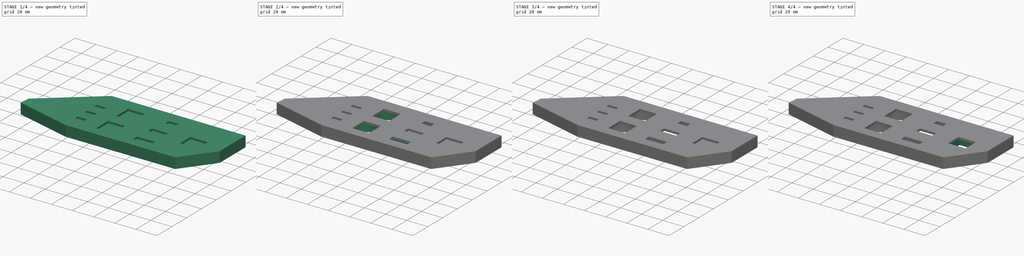
[diagram: build sequence overview — one tinted view per stage of 4, left to right]
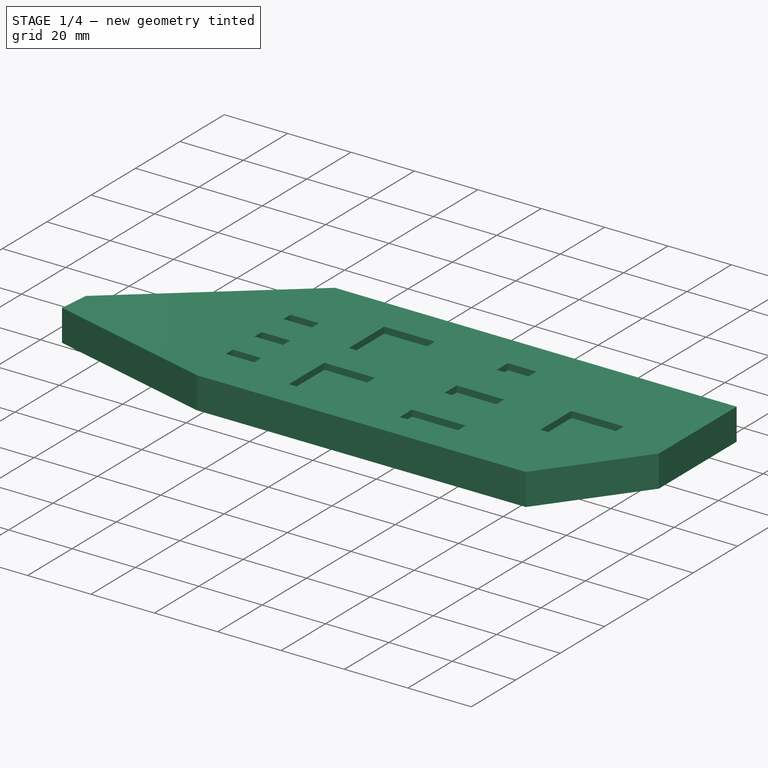
[diagram: stage 1 of 4 — iso view after this stage's code; geometry added in this stage tinted green]
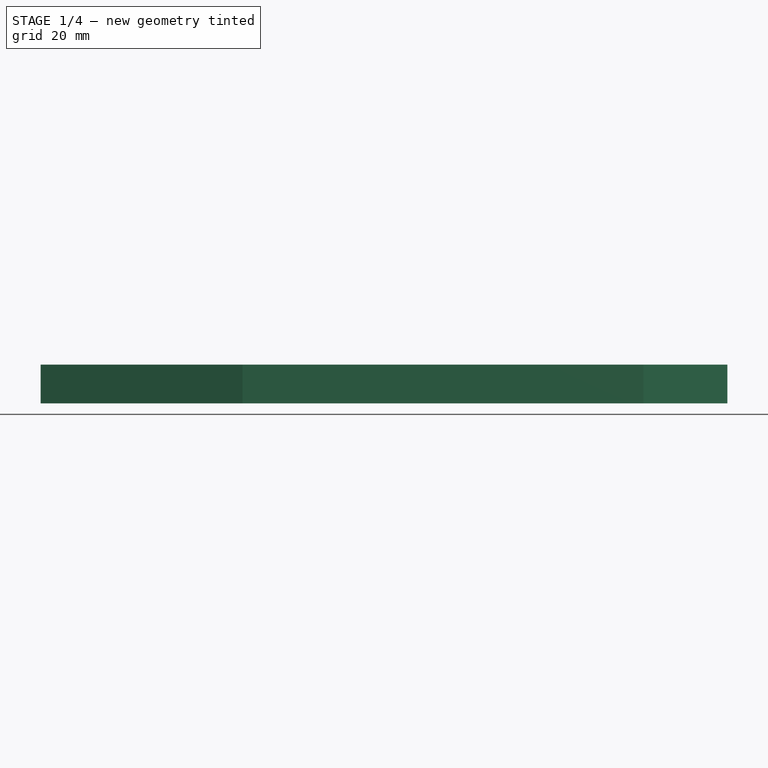
[diagram: stage 1 of 4 — front view after this stage's code; geometry added in this stage tinted green]
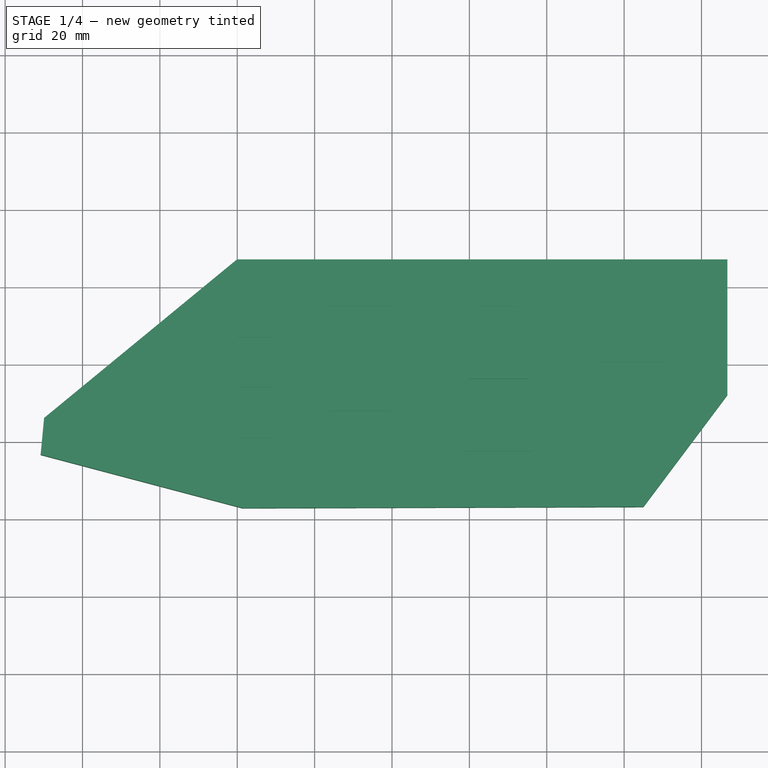
[diagram: stage 1 of 4 — top view after this stage's code; geometry added in this stage tinted green]
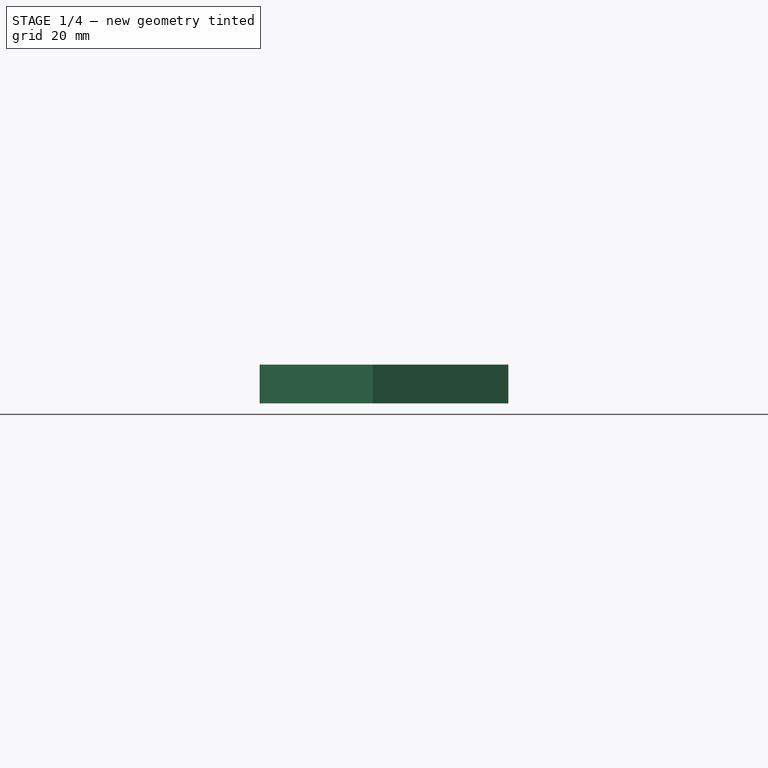
[diagram: stage 1 of 4 — right view after this stage's code; geometry added in this stage tinted green]
FCSTD DOCUMENT  (FreeCAD 2021.717R24301 +3842 (Git))
Label: IO Shield 1-IO ShieldPlate-rev6
License: All rights reserved
LicenseURL: http://en.wikipedia.org/wiki/All_rights_reserved
objects: Sketcher::SketchObject×10, PartDesign::Pocket×9, PartDesign::Pad×1, PartDesign::Body×1, App::Part×1
note: 41 computed .brp shape members not serialized (recipe doc carries the construction recipe); baked Part::Feature solids carry a one-line shape summary decoded from their .brp

FEATURE [Sketcher::SketchObject] Sketch
  FullyConstrained = true
  MapMode = 2
  sketch-geometry (7):
    g0: LineSegment StartX=126.692 StartY=7.13634 StartZ=0 EndX=-0.047754 EndY=7.13634 EndZ=0
    g1: LineSegment StartX=-0.047754 StartY=7.13634 StartZ=0 EndX=-49.9211 EndY=-33.8593 EndZ=0
    g2: LineSegment StartX=-49.9211 StartY=-33.8593 StartZ=0 EndX=-50.8192 EndY=-43.3418 EndZ=0
    g3: LineSegment StartX=-50.8192 StartY=-43.3418 StartZ=0 EndX=1.3606 EndY=-57.1466 EndZ=0
    g4: LineSegment StartX=1.3606 StartY=-57.1466 StartZ=0 EndX=104.98 EndY=-56.822 EndZ=0
    g5: LineSegment StartX=104.98 StartY=-56.822 StartZ=0 EndX=126.692 EndY=-27.8937 EndZ=0
    g6: LineSegment StartX=126.692 StartY=-27.8937 StartZ=0 EndX=126.692 EndY=7.13634 EndZ=0
  constraints (21):
    c: Horizontal(g0)
    c: Coincident(g2,g1)
    c: Distance(g2) = 9.525
    c: Coincident(g3,g2)
    c: Distance(g3) = 53.975
    c: Coincident(g4,g3)
    c: Coincident(g5,g4)
    c: Coincident(g6,g5)
    c: Coincident(g6,g0)
    c: Angle(g0,g6) = 1.5708
    c: Distance(g4) = 103.62
    c: Distance(g5) = 36.17
    c: Coincident(g0,g1)
    c: DistanceX(g0) = -0.047754
    c: DistanceY(g0) = 7.13634
    c: DistanceX(g0,g0) = 126.74
    c: DistanceY(g6,g6) = 35.03
    c: Distance(g1) = 64.56
    c: Angle(g2,g1) = 2.35323
    c: Angle(g1,g0) = 2.45358
    c: Angle(g6,g5) = 2.49774
FEATURE [PartDesign::Pad] Pad  label="Plate"
  ClaimChildren = false
  Direction = (1,1,1)
  Fit = 0
  FitJoin = 0
  InnerFit = 0
  InnerFitJoin = 0
  InnerTaperAngle = 0
  InnerTaperAngleRev = 0
  Length = 10
  Length2 = 100
  Linearize = true
  NewSolid = false
  Profile = -> Sketch
  Suppress = false
  Type = 0
  _ProfileBasedVersion = 1
FEATURE [Sketcher::SketchObject] Sketch001
  FullyConstrained = true
  MapMode = 5
  Placement = pos=(0,0,10) rot=(0,0,1;0rad)
  Support = -> [Pad]
  sketch-geometry (36):
    g0: LineSegment StartX=0 StartY=-12.95 StartZ=0 EndX=9 EndY=-12.95 EndZ=0
    g1: LineSegment StartX=9 StartY=-12.95 StartZ=0 EndX=9 EndY=-16.15 EndZ=0
    g2: LineSegment StartX=9 StartY=-16.15 StartZ=0 EndX=0 EndY=-16.15 EndZ=0
    g3: LineSegment StartX=0 StartY=-16.15 StartZ=0 EndX=0 EndY=-12.95 EndZ=0
    g4: LineSegment StartX=0 StartY=-25.95 StartZ=0 EndX=9 EndY=-25.95 EndZ=0
    g5: LineSegment StartX=9 StartY=-25.95 StartZ=0 EndX=9 EndY=-29.15 EndZ=0
    g6: LineSegment StartX=9 StartY=-29.15 StartZ=0 EndX=0 EndY=-29.15 EndZ=0
    g7: LineSegment StartX=0 StartY=-29.15 StartZ=0 EndX=0 EndY=-25.95 EndZ=0
    g8: LineSegment StartX=0 StartY=-38.95 StartZ=0 EndX=9 EndY=-38.95 EndZ=0
    g9: LineSegment StartX=9 StartY=-38.95 StartZ=0 EndX=9 EndY=-42.15 EndZ=0
    g10: LineSegment StartX=9 StartY=-42.15 StartZ=0 EndX=0 EndY=-42.15 EndZ=0
    g11: LineSegment StartX=0 StartY=-42.15 StartZ=0 EndX=0 EndY=-38.95 EndZ=0
    g12: LineSegment StartX=60 StartY=-23.75 StartZ=0 EndX=75 EndY=-23.75 EndZ=0
    g13: LineSegment StartX=60 StartY=-23.75 StartZ=0 EndX=60 EndY=-29.25 EndZ=0
    g14: LineSegment StartX=75 StartY=-23.75 StartZ=0 EndX=75 EndY=-29.25 EndZ=0
    g15: LineSegment StartX=60 StartY=-29.25 StartZ=0 EndX=75 EndY=-29.25 EndZ=0
    g16: LineSegment StartX=63 StartY=-5 StartZ=0 EndX=72 EndY=-5 EndZ=0
    g17: LineSegment StartX=72 StartY=-5 StartZ=0 EndX=72 EndY=-10 EndZ=0
    g18: LineSegment StartX=72 StartY=-10 StartZ=0 EndX=63 EndY=-10 EndZ=0
    g19: LineSegment StartX=63 StartY=-10 StartZ=0 EndX=63 EndY=-5 EndZ=0
    g20: LineSegment StartX=93.25 StartY=-19.5 StartZ=0 EndX=109.75 EndY=-19.5 EndZ=0
    g21: LineSegment StartX=109.75 StartY=-19.5 StartZ=0 EndX=109.75 EndY=-33.5 EndZ=0
    g22: LineSegment StartX=109.75 StartY=-33.5 StartZ=0 EndX=93.25 EndY=-33.5 EndZ=0
    g23: LineSegment StartX=93.25 StartY=-33.5 StartZ=0 EndX=93.25 EndY=-19.5 EndZ=0
    g24: LineSegment StartX=24 StartY=-5 StartZ=0 EndX=40 EndY=-5 EndZ=0
    g25: LineSegment StartX=40 StartY=-5 StartZ=0 EndX=40 EndY=-21 EndZ=0
    g26: LineSegment StartX=40 StartY=-21 StartZ=0 EndX=24 EndY=-21 EndZ=0
    g27: LineSegment StartX=24 StartY=-21 StartZ=0 EndX=24 EndY=-5 EndZ=0
    g28: LineSegment StartX=24 StartY=-32 StartZ=0 EndX=40 EndY=-32 EndZ=0
    g29: LineSegment StartX=40 StartY=-32 StartZ=0 EndX=40 EndY=-48 EndZ=0
    g30: LineSegment StartX=40 StartY=-48 StartZ=0 EndX=24 EndY=-48 EndZ=0
    g31: LineSegment StartX=24 StartY=-48 StartZ=0 EndX=24 EndY=-32 EndZ=0
    g32: LineSegment StartX=59 StartY=-42.5 StartZ=0 EndX=76 EndY=-42.5 EndZ=0
    g33: LineSegment StartX=76 StartY=-42.5 StartZ=0 EndX=76 EndY=-48 EndZ=0
    g34: LineSegment StartX=76 StartY=-48 StartZ=0 EndX=59 EndY=-48 EndZ=0
    g35: LineSegment StartX=59 StartY=-48 StartZ=0 EndX=59 EndY=-42.5 EndZ=0
  constraints (108):
    c: Coincident(g0,g1)
    c: Coincident(g1,g2)
    c: Coincident(g2,g3)
    c: Coincident(g3,g0)
    c: Horizontal(g0)
    c: Horizontal(g2)
    c: Vertical(g1)
    c: Vertical(g3)
    c: DistanceX(g0,g0) = 9
    c: DistanceY(g3,g3) = 3.2
    c: DistanceX(g0) = 0
    c: DistanceY(g0) = -12.95
    c: Coincident(g4,g5)
    c: Coincident(g5,g6)
    c: Coincident(g6,g7)
    c: Coincident(g7,g4)
    c: Horizontal(g4)
    c: Horizontal(g6)
    c: Vertical(g5)
    c: Vertical(g7)
    c: Equal(g4,g2)
    c: Equal(g5,g1)
    c: DistanceX(g4) = 0
    c: DistanceY(g4) = -25.95
    c: Coincident(g8,g9)
    c: Coincident(g9,g10)
    c: Coincident(g10,g11)
    c: Coincident(g11,g8)
    c: Horizontal(g8)
    c: Horizontal(g10)
    c: Vertical(g9)
    c: Vertical(g11)
    c: Equal(g8,g6)
    c: Equal(g9,g5)
    c: DistanceX(g8) = 0
    c: DistanceY(g8) = -38.95
    c: Horizontal(g12)
    c: DistanceX(g12,g12) = 15
    c: Coincident(g13,g12)
    c: Vertical(g13)
    c: DistanceY(g13,g13) = 5.5
    c: Coincident(g14,g12)
    c: Equal(g14,g13)
    c: Vertical(g14)
    c: Coincident(g15,g13)
    c: Coincident(g15,g14)
    c: DistanceX(g12) = 60
    c: DistanceY(g12) = -23.75
    c: Coincident(g16,g17)
    c: Coincident(g17,g18)
    c: Coincident(g18,g19)
    c: Coincident(g19,g16)
    c: Horizontal(g16)
    c: Horizontal(g18)
    c: Vertical(g17)
    c: Vertical(g19)
    c: DistanceX(g16,g16) = 9
    c: DistanceY(g17,g17) = 5
    c: DistanceX(g16) = 63
    c: DistanceY(g16) = -5
    c: Coincident(g20,g21)
    c: Coincident(g21,g22)
    c: Coincident(g22,g23)
    c: Coincident(g23,g20)
    c: Horizontal(g20)
    c: Horizontal(g22)
    c: Vertical(g21)
    c: Vertical(g23)
    c: DistanceX(g20,g20) = 16.5
    c: DistanceY(g23,g23) = 14
    c: DistanceX(g20) = 93.25
    c: DistanceY(g20) = -19.5
    c: Coincident(g24,g25)
    c: Coincident(g25,g26)
    c: Coincident(g26,g27)
    c: Coincident(g27,g24)
    c: Horizontal(g24)
    c: Horizontal(g26)
    c: Vertical(g25)
    c: Vertical(g27)
    c: DistanceX(g26,g26) = 16
    c: DistanceY(g25,g25) = 16
    c: Coincident(g28,g29)
    c: Coincident(g29,g30)
    c: Coincident(g30,g31)
    c: Coincident(g31,g28)
    c: Horizontal(g28)
    c: Horizontal(g30)
    c: Vertical(g29)
    c: Vertical(g31)
    c: DistanceX(g28,g28) = 16
    c: DistanceY(g29,g29) = 16
    c: DistanceX(g28) = 24
    c: DistanceY(g28) = -32
    c: DistanceX(g24) = 24
    c: DistanceY(g24) = -5
    c: Coincident(g32,g33)
    c: Coincident(g33,g34)
    c: Coincident(g34,g35)
    c: Coincident(g35,g32)
    c: Horizontal(g32)
    c: Horizontal(g34)
    c: Vertical(g33)
    c: Vertical(g35)
    c: DistanceX(g32,g32) = 17
    c: DistanceY(g35,g35) = 5.5
    c: DistanceX(g32) = 59
    c: DistanceY(g32) = -42.5
FEATURE [PartDesign::Pocket] Pocket  label="Port Holes"
  BaseFeature = -> Pad
  ClaimChildren = false
  Fit = 0
  FitJoin = 0
  InnerFit = 0
  InnerFitJoin = 0
  InnerTaperAngle = 0
  InnerTaperAngleRev = 0
  Length = 2
  Length2 = 100
  Linearize = true
  NewSolid = false
  Profile = -> Sketch001
  Suppress = false
  Type = 0
  _ProfileBasedVersion = 1
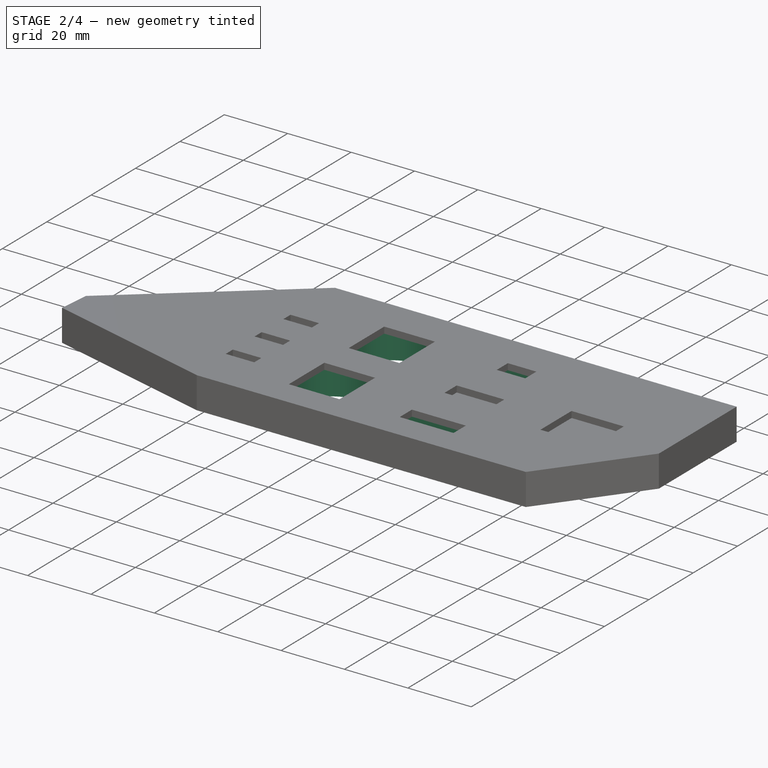
[diagram: stage 2 of 4 — iso view after this stage's code; geometry added in this stage tinted green]
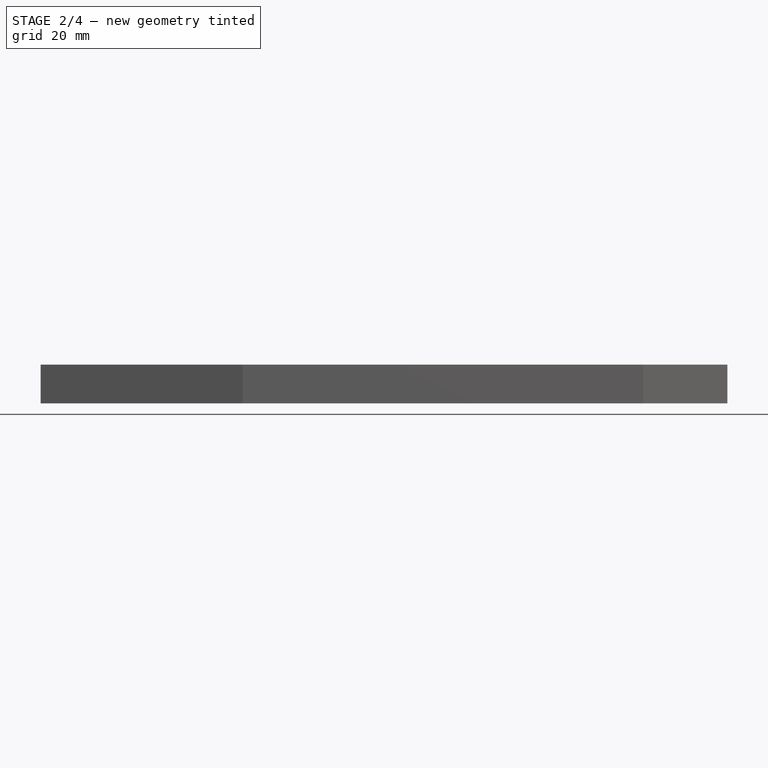
[diagram: stage 2 of 4 — front view after this stage's code; geometry added in this stage tinted green]
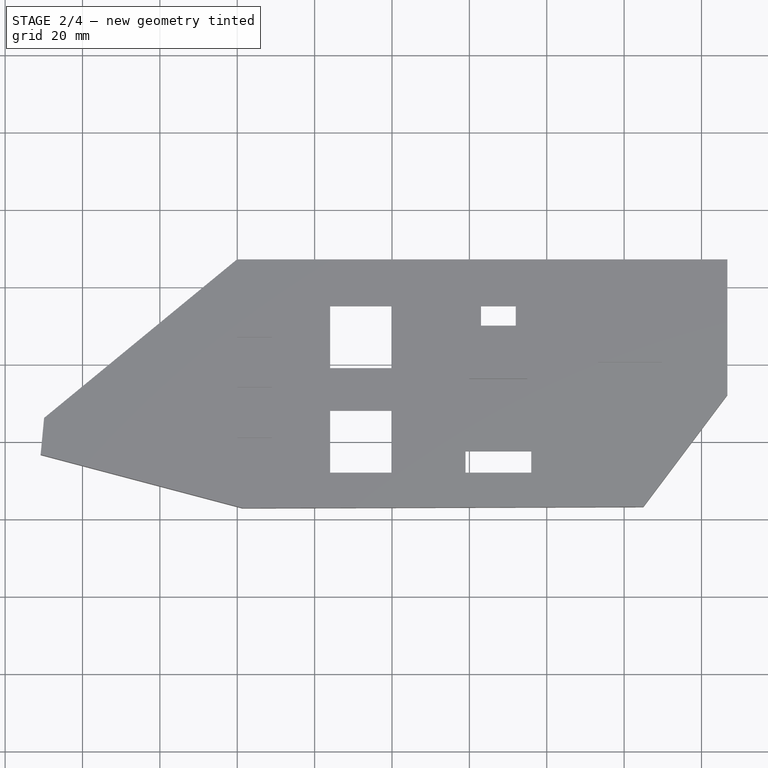
[diagram: stage 2 of 4 — top view after this stage's code; geometry added in this stage tinted green]
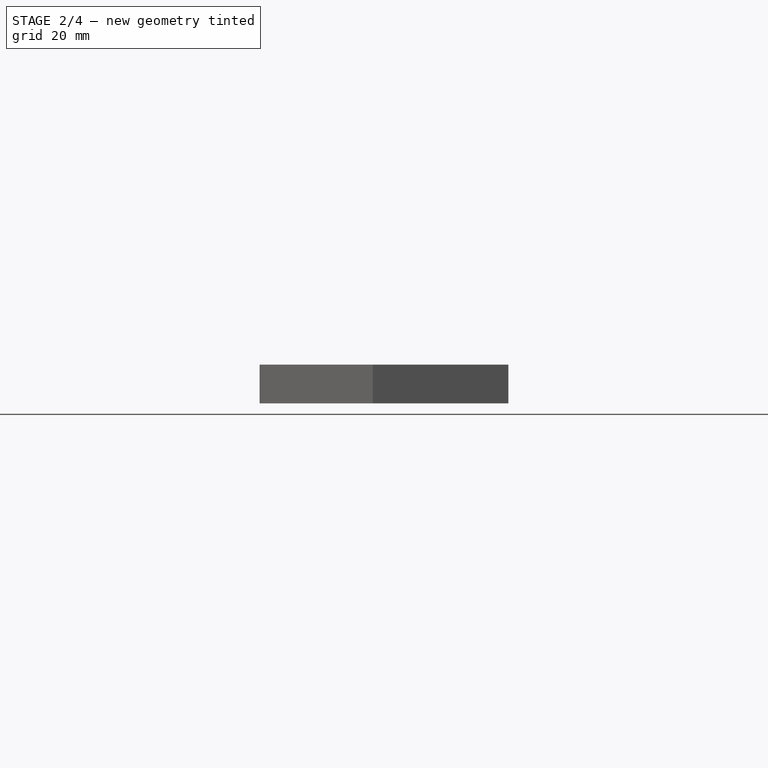
[diagram: stage 2 of 4 — right view after this stage's code; geometry added in this stage tinted green]
FEATURE [Sketcher::SketchObject] Sketch002  label="USB A"
  FullyConstrained = true
  MapMode = 5
  Placement = pos=(0,0,0) rot=(1,0,0;3.14159rad)
  Support = -> [Pocket]
  sketch-geometry (2):
    g0: Circle CenterX=32 CenterY=39.9823 CenterZ=0 NormalX=0 NormalY=0 NormalZ=1 AngleXU=0 Radius=12
    g1: Circle CenterX=32 CenterY=12.9892 CenterZ=0 NormalX=0 NormalY=0 NormalZ=1 AngleXU=0 Radius=12
  constraints (6):
    c: Diameter(g0) = 24
    c: DistanceX(g0) = 32
    c: DistanceY(g0) = 39.9823
    c: Diameter(g1) = 24
    c: DistanceX(g1) = 32
    c: DistanceY(g1) = 12.9892
FEATURE [PartDesign::Pocket] Pocket001  label="USB A Back Hole"
  BaseFeature = -> Pocket
  ClaimChildren = false
  Fit = 0
  FitJoin = 0
  InnerFit = 0
  InnerFitJoin = 0
  InnerTaperAngle = 0
  InnerTaperAngleRev = 0
  Length = 0
  Length2 = 100
  Linearize = true
  NewSolid = false
  Profile = -> Sketch002
  Suppress = false
  Type = 3
  UpToFace = -> Pocket [Face47]
  _ProfileBasedVersion = 1
FEATURE [Sketcher::SketchObject] Sketch003  label="MiniDP Back Hole"
  FullyConstrained = true
  MapMode = 5
  Placement = pos=(0,0,0) rot=(1,0,0;3.14159rad)
  Support = -> [Pocket001]
  sketch-geometry (4):
    g0: LineSegment StartX=46.9815 StartY=17 StartZ=0 EndX=87.9815 EndY=17 EndZ=0
    g1: LineSegment StartX=87.9815 StartY=17 StartZ=0 EndX=87.9815 EndY=-2 EndZ=0
    g2: LineSegment StartX=87.9815 StartY=-2 StartZ=0 EndX=46.9815 EndY=-2 EndZ=0
    g3: LineSegment StartX=46.9815 StartY=-2 StartZ=0 EndX=46.9815 EndY=17 EndZ=0
  constraints (12):
    c: Coincident(g0,g1)
    c: Coincident(g1,g2)
    c: Coincident(g2,g3)
    c: Coincident(g3,g0)
    c: Horizontal(g0)
    c: Horizontal(g2)
    c: Vertical(g1)
    c: Vertical(g3)
    c: DistanceY(g1,g1) = 19
    c: DistanceX(g0,g0) = 41
    c: DistanceX(g0) = 46.9815
    c: DistanceY(g0) = 17
FEATURE [PartDesign::Pocket] Pocket002  label="MiniDP Back Hole Pocket"
  BaseFeature = -> Pocket001
  ClaimChildren = false
  Fit = 0
  FitJoin = 0
  InnerFit = 0
  InnerFitJoin = 0
  InnerTaperAngle = 0
  InnerTaperAngleRev = 0
  Length = 0
  Length2 = 100
  Linearize = true
  NewSolid = false
  Profile = -> Sketch003
  Suppress = false
  Type = 3
  UpToFace = -> Pocket001 [Face56]
  _ProfileBasedVersion = 1
FEATURE [Sketcher::SketchObject] Sketch004  label="DisplayPort Back Hole"
  FullyConstrained = true
  MapMode = 5
  Placement = pos=(0,0,0) rot=(1,0,0;3.14159rad)
  Support = -> [Pocket002]
  sketch-geometry (4):
    g0: LineSegment StartX=50.0139 StartY=51.5 StartZ=0 EndX=85.0139 EndY=51.5 EndZ=0
    g1: LineSegment StartX=85.0139 StartY=51.5 StartZ=0 EndX=85.0139 EndY=39 EndZ=0
    g2: LineSegment StartX=85.0139 StartY=39 StartZ=0 EndX=50.0139 EndY=39 EndZ=0
    g3: LineSegment StartX=50.0139 StartY=39 StartZ=0 EndX=50.0139 EndY=51.5 EndZ=0
  constraints (12):
    c: Coincident(g0,g1)
    c: Coincident(g1,g2)
    c: Coincident(g2,g3)
    c: Coincident(g3,g0)
    c: Horizontal(g0)
    c: Horizontal(g2)
    c: Vertical(g1)
    c: Vertical(g3)
    c: DistanceY(g1,g1) = 12.5
    c: DistanceX(g0,g0) = 35
    c: DistanceX(g0) = 50.0139
    c: DistanceY(g0) = 51.5
FEATURE [PartDesign::Pocket] Pocket003  label="DisplayPort Back Hole Pocket"
  BaseFeature = -> Pocket002
  ClaimChildren = false
  Fit = 0
  FitJoin = 0
  InnerFit = 0
  InnerFitJoin = 0
  InnerTaperAngle = 0
  InnerTaperAngleRev = 0
  Length = 0
  Length2 = 100
  Linearize = true
  NewSolid = false
  Profile = -> Sketch004
  Suppress = false
  Type = 3
  UpToFace = -> Pocket002 [Face57]
  _ProfileBasedVersion = 1
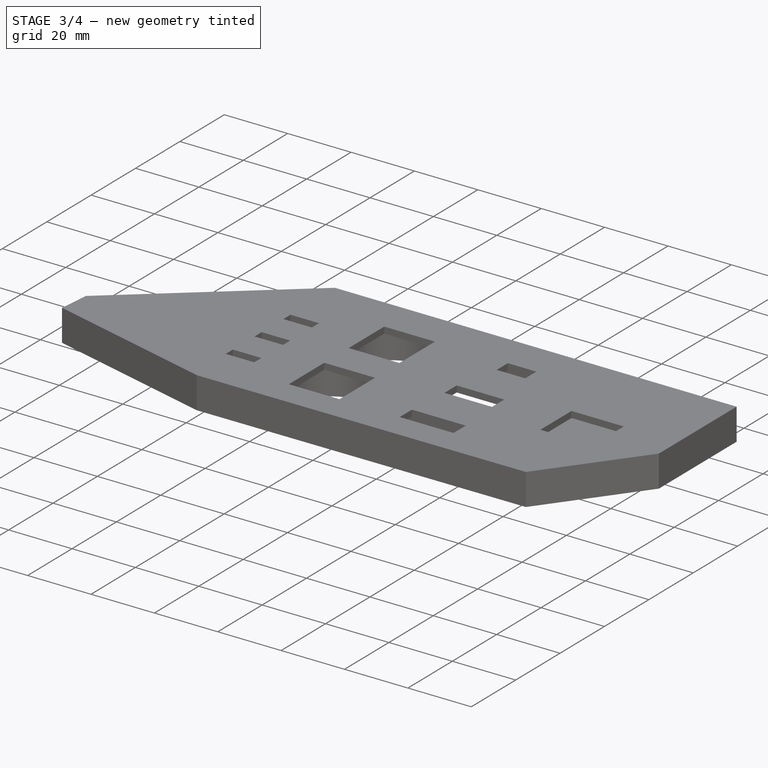
[diagram: stage 3 of 4 — iso view after this stage's code; geometry added in this stage tinted green]
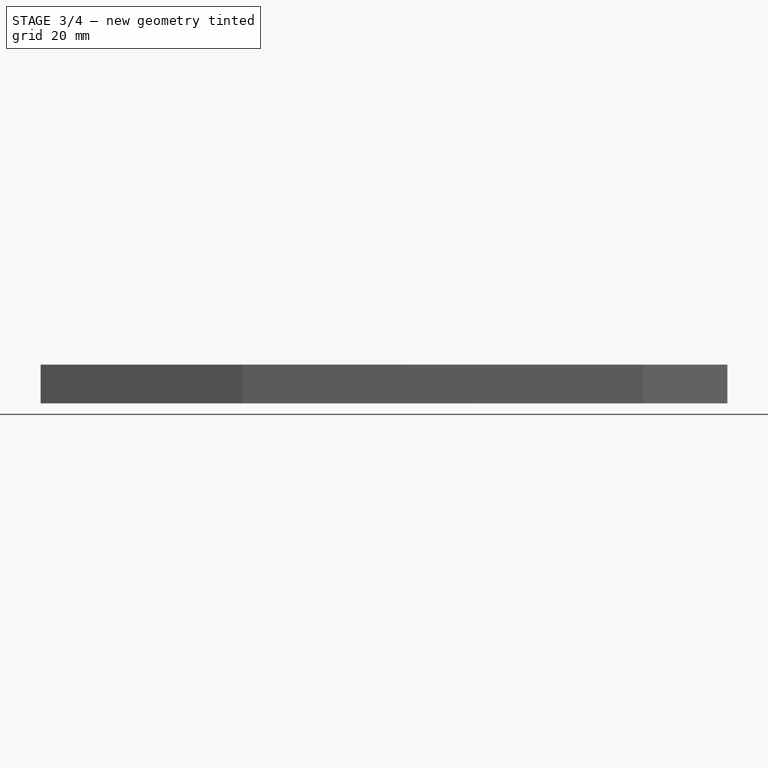
[diagram: stage 3 of 4 — front view after this stage's code; geometry added in this stage tinted green]
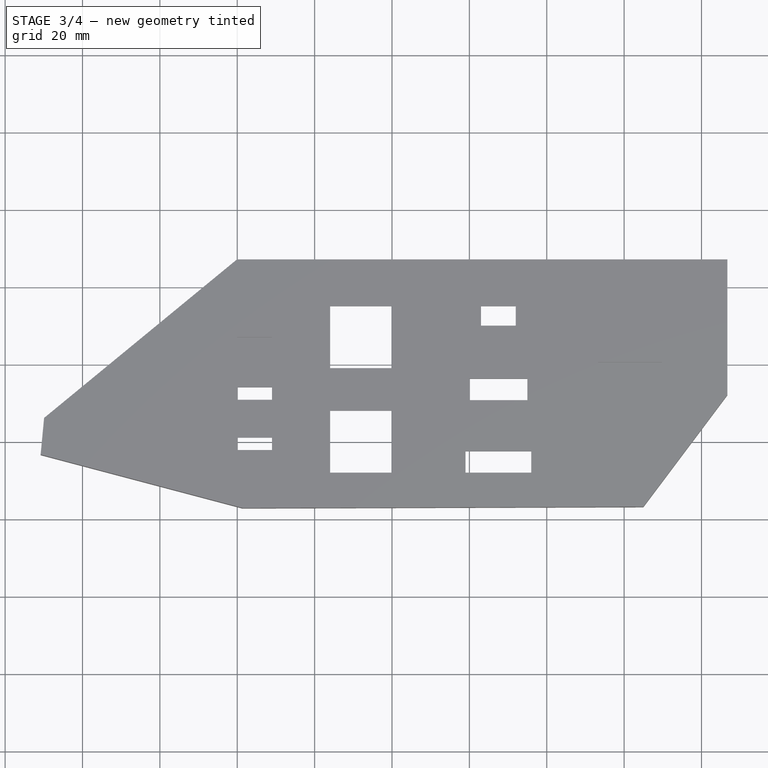
[diagram: stage 3 of 4 — top view after this stage's code; geometry added in this stage tinted green]
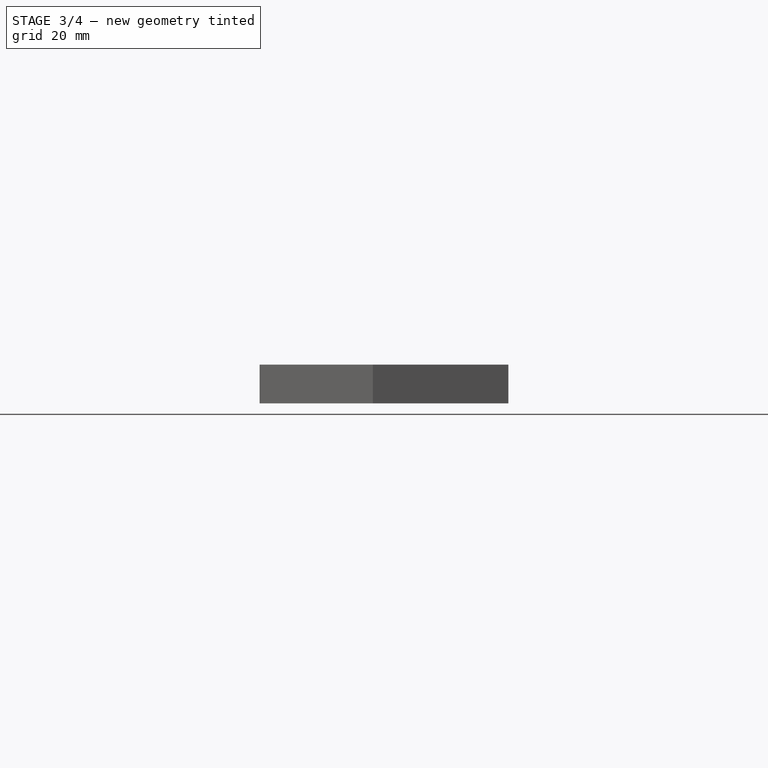
[diagram: stage 3 of 4 — right view after this stage's code; geometry added in this stage tinted green]
FEATURE [Sketcher::SketchObject] Sketch005  label="HDMI Back Hole"
  FullyConstrained = false
  MapMode = 5
  Placement = pos=(0,0,0) rot=(1,0,0;3.14159rad)
  Support = -> [Pocket003]
  sketch-geometry (4):
    g0: LineSegment StartX=47.1948 StartY=36.9978 StartZ=0 EndX=88.1948 EndY=36.9978 EndZ=0
    g1: LineSegment StartX=88.1948 StartY=36.9978 StartZ=0 EndX=88.1948 EndY=15.9978 EndZ=0
    g2: LineSegment StartX=88.1948 StartY=15.9978 StartZ=0 EndX=47.1948 EndY=15.9978 EndZ=0
    g3: LineSegment StartX=47.1948 StartY=15.9978 StartZ=0 EndX=47.1948 EndY=36.9978 EndZ=0
  constraints (11):
    c: Coincident(g0,g1)
    c: Coincident(g1,g2)
    c: Coincident(g2,g3)
    c: Coincident(g3,g0)
    c: Horizontal(g0)
    c: Horizontal(g2)
    c: Vertical(g1)
    c: Vertical(g3)
    c: DistanceY(g1,g1) = 21
    c: DistanceX(g0,g0) = 41
    c: DistanceX(g0) = 47.1948
FEATURE [PartDesign::Pocket] Pocket004  label="HDMI Back Hole Pocket"
  BaseFeature = -> Pocket003
  ClaimChildren = false
  Fit = 0
  FitJoin = 0
  InnerFit = 0
  InnerFitJoin = 0
  InnerTaperAngle = 0
  InnerTaperAngleRev = 0
  Length = 0
  Length2 = 100
  Linearize = true
  NewSolid = false
  Profile = -> Sketch005
  Suppress = false
  Type = 3
  UpToFace = -> Pocket003 [Face62]
  _ProfileBasedVersion = 1
FEATURE [Sketcher::SketchObject] Sketch006  label="USB-C 1 Hole"
  FullyConstrained = true
  MapMode = 5
  Placement = pos=(0,0,0) rot=(1,0,0;3.14159rad)
  Support = -> [Pocket004]
  sketch-geometry (4):
    g0: LineSegment StartX=-2.49085 StartY=46.5402 StartZ=0 EndX=11.5091 EndY=46.5402 EndZ=0
    g1: LineSegment StartX=11.5091 StartY=46.5402 StartZ=0 EndX=11.5091 EndY=34.5402 EndZ=0
    g2: LineSegment StartX=11.5091 StartY=34.5402 StartZ=0 EndX=-2.49085 EndY=34.5402 EndZ=0
    g3: LineSegment StartX=-2.49085 StartY=34.5402 StartZ=0 EndX=-2.49085 EndY=46.5402 EndZ=0
  constraints (12):
    c: Coincident(g0,g1)
    c: Coincident(g1,g2)
    c: Coincident(g2,g3)
    c: Coincident(g3,g0)
    c: Horizontal(g0)
    c: Horizontal(g2)
    c: Vertical(g1)
    c: Vertical(g3)
    c: DistanceX(g0,g0) = 14
    c: DistanceY(g1,g1) = 12
    c: DistanceX(g0) = -2.49085
    c: DistanceY(g0) = 46.5402
FEATURE [PartDesign::Pocket] Pocket005  label="USB-C 1 Hole Pocket"
  BaseFeature = -> Pocket004
  ClaimChildren = false
  Fit = 0
  FitJoin = 0
  InnerFit = 0
  InnerFitJoin = 0
  InnerTaperAngle = 0
  InnerTaperAngleRev = 0
  Length = 0
  Length2 = 100
  Linearize = true
  NewSolid = false
  Profile = -> Sketch006
  Suppress = false
  Type = 3
  UpToFace = -> Pocket004 [Face65]
  _ProfileBasedVersion = 1
FEATURE [Sketcher::SketchObject] Sketch007  label="USB-C 2 Hole"
  FullyConstrained = true
  MapMode = 5
  Placement = pos=(0,0,0) rot=(1,0,0;3.14159rad)
  Support = -> [Pocket005]
  sketch-geometry (4):
    g0: LineSegment StartX=-2 StartY=31.5458 StartZ=0 EndX=11 EndY=31.5458 EndZ=0
    g1: LineSegment StartX=11 StartY=31.5458 StartZ=0 EndX=11 EndY=23.5458 EndZ=0
    g2: LineSegment StartX=11 StartY=23.5458 StartZ=0 EndX=-2 EndY=23.5458 EndZ=0
    g3: LineSegment StartX=-2 StartY=23.5458 StartZ=0 EndX=-2 EndY=31.5458 EndZ=0
  constraints (12):
    c: Coincident(g0,g1)
    c: Coincident(g1,g2)
    c: Coincident(g2,g3)
    c: Coincident(g3,g0)
    c: Horizontal(g0)
    c: Horizontal(g2)
    c: Vertical(g1)
    c: Vertical(g3)
    c: DistanceX(g0,g0) = 13
    c: DistanceY(g1,g1) = 8
    c: DistanceX(g0) = -2
    c: DistanceY(g0) = 31.5458
FEATURE [PartDesign::Pocket] Pocket006  label="USB-C 2 Hole Pocket"
  BaseFeature = -> Pocket005
  ClaimChildren = false
  Fit = 0
  FitJoin = 0
  InnerFit = 0
  InnerFitJoin = 0
  InnerTaperAngle = 0
  InnerTaperAngleRev = 0
  Length = 0
  Length2 = 100
  Linearize = true
  NewSolid = false
  Profile = -> Sketch007
  Suppress = false
  Type = 3
  UpToFace = -> Pocket005 [Face70]
  _ProfileBasedVersion = 1
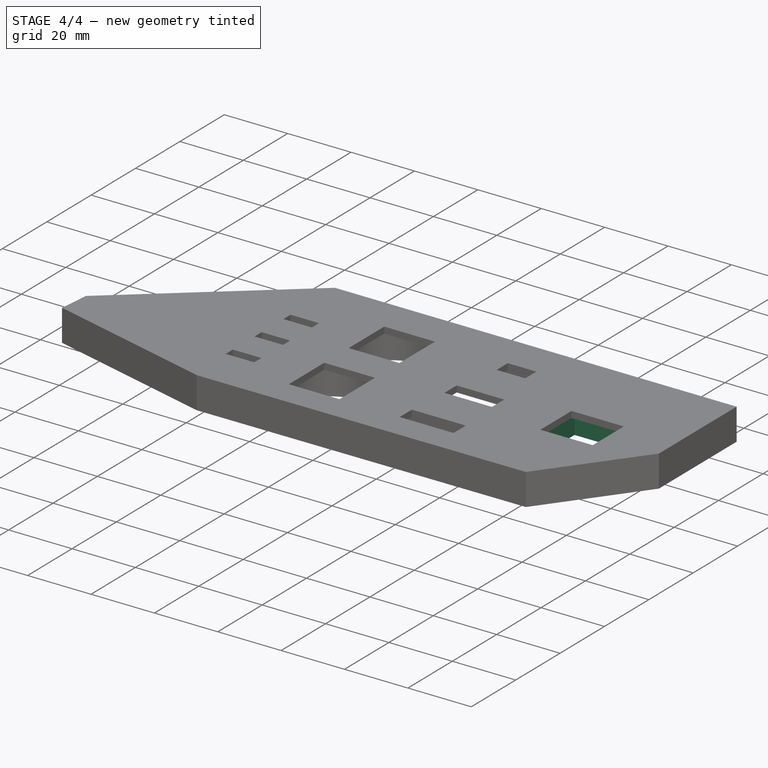
[diagram: stage 4 of 4 — iso view after this stage's code; geometry added in this stage tinted green]
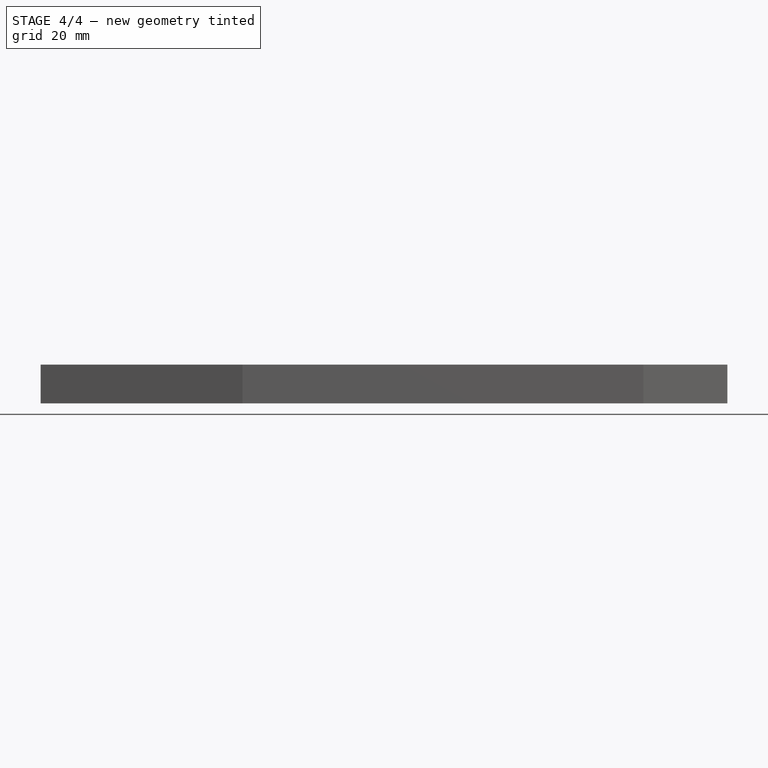
[diagram: stage 4 of 4 — front view after this stage's code; geometry added in this stage tinted green]
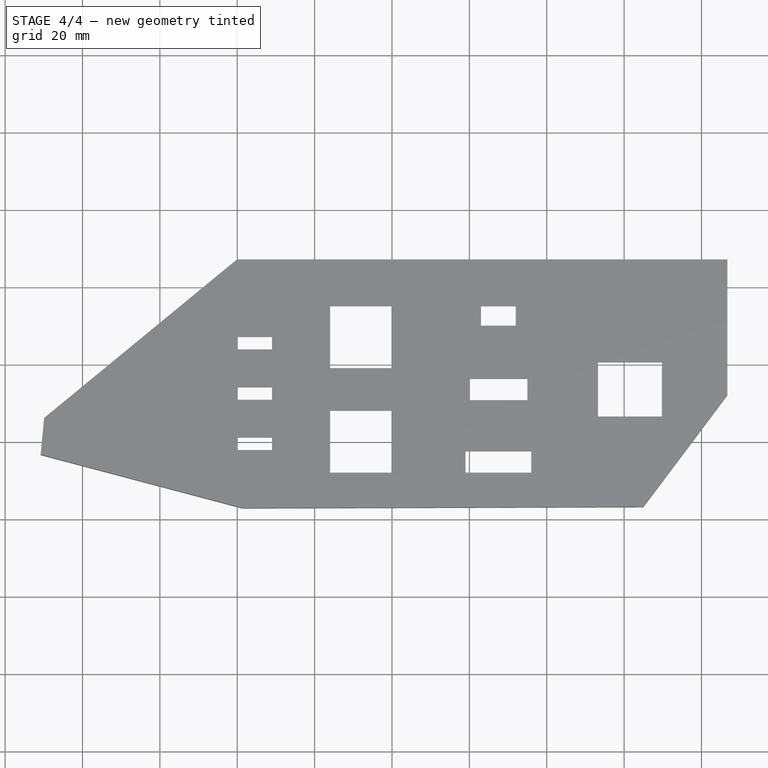
[diagram: stage 4 of 4 — top view after this stage's code; geometry added in this stage tinted green]
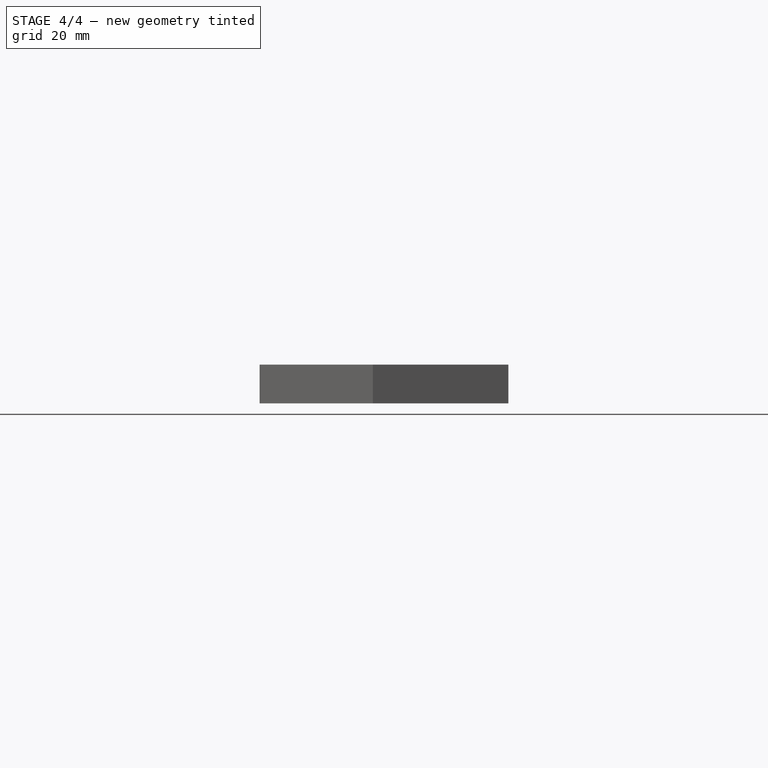
[diagram: stage 4 of 4 — right view after this stage's code; geometry added in this stage tinted green]
FEATURE [Sketcher::SketchObject] Sketch008  label="USB-C 3 Hole"
  FullyConstrained = true
  MapMode = 5
  Placement = pos=(0,0,0) rot=(1,0,0;3.14159rad)
  Support = -> [Pocket006]
  sketch-geometry (4):
    g0: LineSegment StartX=-9 StartY=19.555 StartZ=0 EndX=18 EndY=19.555 EndZ=0
    g1: LineSegment StartX=18 StartY=19.555 StartZ=0 EndX=18 EndY=9.55499 EndZ=0
    g2: LineSegment StartX=18 StartY=9.55499 StartZ=0 EndX=-9 EndY=9.55499 EndZ=0
    g3: LineSegment StartX=-9 StartY=9.55499 StartZ=0 EndX=-9 EndY=19.555 EndZ=0
  constraints (12):
    c: Coincident(g0,g1)
    c: Coincident(g1,g2)
    c: Coincident(g2,g3)
    c: Coincident(g3,g0)
    c: Horizontal(g0)
    c: Horizontal(g2)
    c: Vertical(g1)
    c: Vertical(g3)
    c: DistanceX(g0,g0) = 27
    c: DistanceY(g1,g1) = 10
    c: DistanceX(g0) = -9
    c: DistanceY(g0) = 19.555
FEATURE [PartDesign::Pocket] Pocket007  label="USB-C 3 Hole Pocket"
  BaseFeature = -> Pocket006
  ClaimChildren = false
  Fit = 0
  FitJoin = 0
  InnerFit = 0
  InnerFitJoin = 0
  InnerTaperAngle = 0
  InnerTaperAngleRev = 0
  Length = 0
  Length2 = 100
  Linearize = true
  NewSolid = false
  Profile = -> Sketch008
  Suppress = false
  Type = 3
  UpToFace = -> Pocket006 [Face75]
  _ProfileBasedVersion = 1
FEATURE [Sketcher::SketchObject] Sketch009  label="Ethernet Hole"
  FullyConstrained = true
  MapMode = 5
  Placement = pos=(0,0,0) rot=(1,0,0;3.14159rad)
  Support = -> [Pocket007]
  sketch-geometry (4):
    g0: LineSegment StartX=90 StartY=36.5 StartZ=0 EndX=113 EndY=36.5 EndZ=0
    g1: LineSegment StartX=113 StartY=36.5 StartZ=0 EndX=113 EndY=13.5 EndZ=0
    g2: LineSegment StartX=113 StartY=13.5 StartZ=0 EndX=90 EndY=13.5 EndZ=0
    g3: LineSegment StartX=90 StartY=13.5 StartZ=0 EndX=90 EndY=36.5 EndZ=0
  constraints (12):
    c: Coincident(g0,g1)
    c: Coincident(g1,g2)
    c: Coincident(g2,g3)
    c: Coincident(g3,g0)
    c: Horizontal(g0)
    c: Horizontal(g2)
    c: Vertical(g1)
    c: Vertical(g3)
    c: DistanceX(g0,g0) = 23
    c: DistanceY(g1,g1) = 23
    c: DistanceX(g0) = 90
    c: DistanceY(g0) = 36.5
FEATURE [PartDesign::Pocket] Pocket008
  BaseFeature = -> Pocket007
  ClaimChildren = false
  Fit = 0
  FitJoin = 0
  InnerFit = 0
  InnerFitJoin = 0
  InnerTaperAngle = 0
  InnerTaperAngleRev = 0
  Length = 0
  Length2 = 100
  Linearize = true
  NewSolid = false
  Profile = -> Sketch009
  Suppress = false
  Type = 3
  UpToFace = -> Pocket007 [Face80]
  _ProfileBasedVersion = 1
FEATURE [PartDesign::Body] Body
  AutoGroupSolids = false
  ExportMode = 0
  Group = -> [Sketch,Pad,Sketch001,Pocket,Sketch002,Pocket001,Sketch003,Pocket002,Sketch004,Pocket003,Sketch005,Pocket004,Sketch006,Pocket005,Sketch007,Pocket006,Sketch008,Pocket007,Sketch009,Pocket008]
  Origin = -> Origin001
  Tip = -> Pocket008
  _ExportChildren = -> [Pad,Pocket,Pocket001,Pocket002,Pocket003,Pocket004,Pocket005,Pocket006,Pocket007,Pocket008]
  _GroupVersion = 1
FEATURE [App::Part] Part  label="IO Shield"
  ExportMode = 1
  Group = -> [Body]
  Origin = -> Origin
  _ExportChildren = -> [Body]
  _GroupVersion = 1
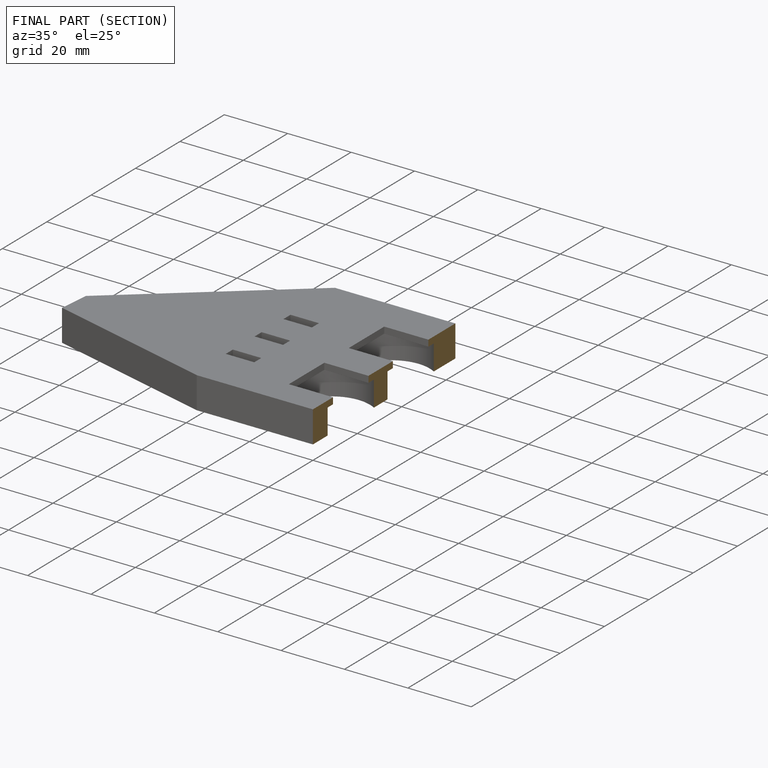
[diagram: finished part — half-section view (interior)]
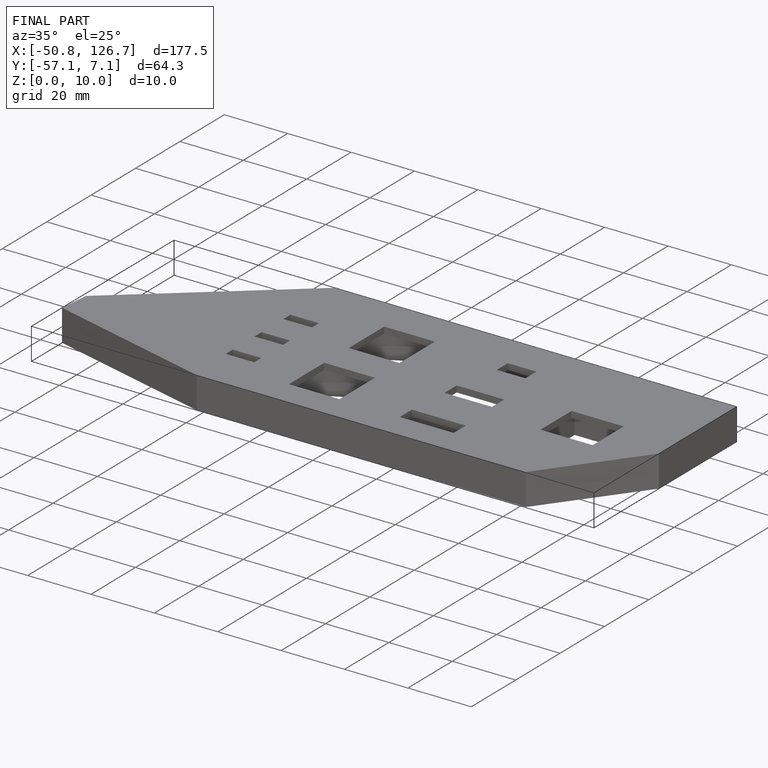
[diagram: finished part — iso view with bounding-box wireframe]
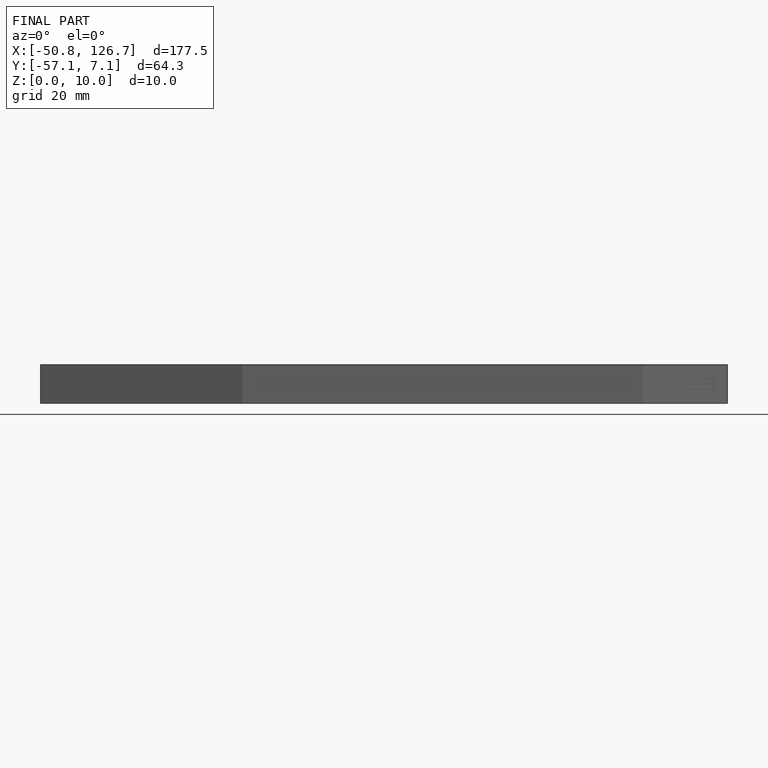
[diagram: finished part — front view with bounding-box wireframe]
